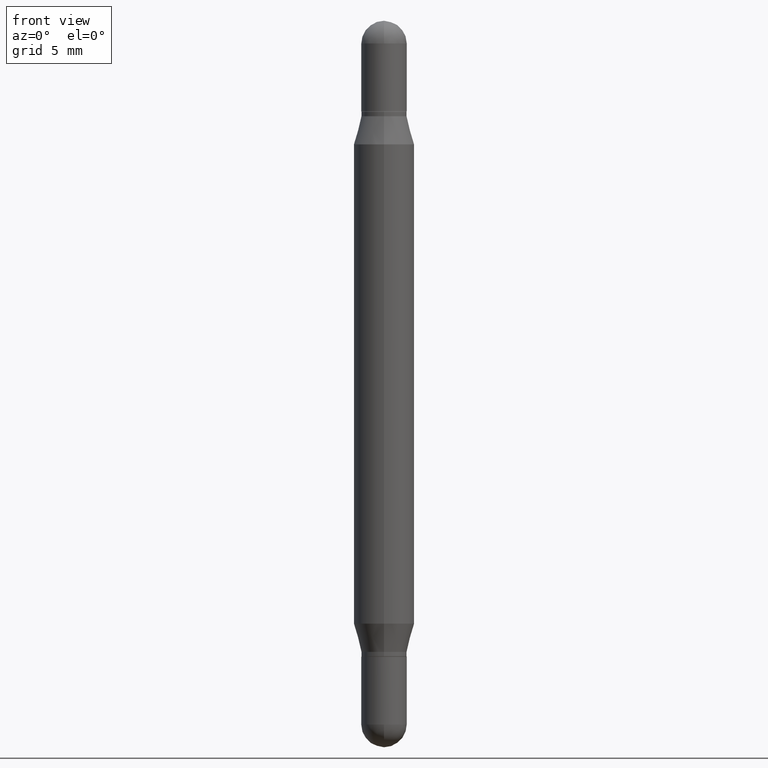
[diagram: clean part render]
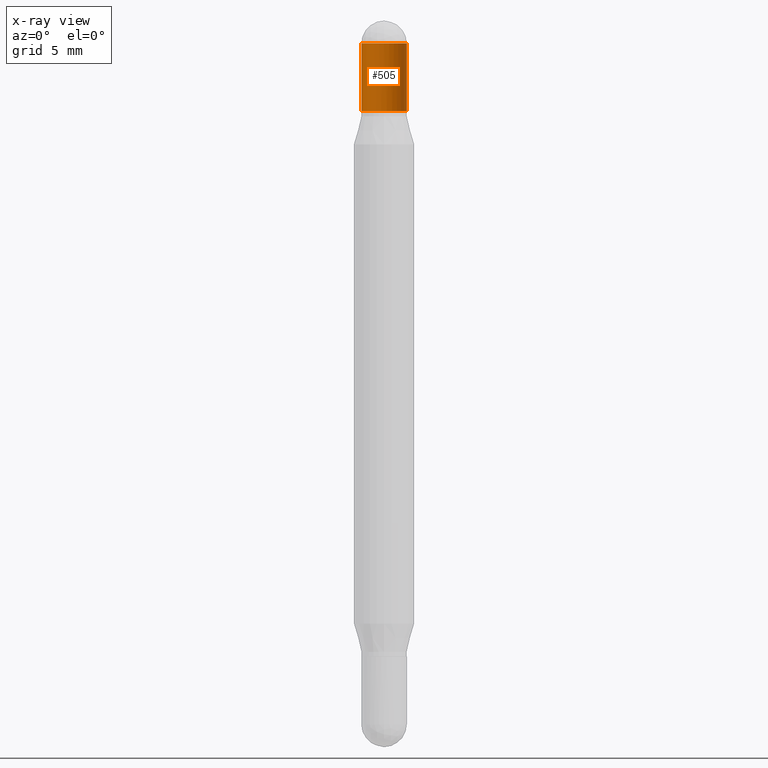
[diagram: x-ray — body ghosted, one internal face saturated and labeled with its STEP entity id]
A machine part, front view, then the same camera in x-ray: the body is ghosted and one INTERNAL B-rep face — a face not visible from any outside direction — is saturated and labeled: STEP entity #505.
In plain terms, the highlighted cylindrical surface (edge-blend (fillet) strip) has radius 1.1913 mm, axis along (-0, -0, -1).
Its self-contained STEP definition (entity closure, byte-faithful):
#1 = VERTEX_POINT ( 'NONE', #438 ) ;
#21 = DIRECTION ( 'NONE',  ( 1.000000000000000000, -6.982962677686266711E-15, 0.000000000000000000 ) ) ;
#36 = CARTESIAN_POINT ( 'NONE',  ( -0.04689999999999999725, -4.906564498270247118E-15, -1.500000000000000444 ) ) ;
#93 = CARTESIAN_POINT ( 'NONE',  ( 3.217573560955207797E-16, 0.04689999999999990010, -0.04690000000000069114 ) ) ;
#98 = FACE_OUTER_BOUND ( 'NONE', #277, .T. ) ;
#105 = CARTESIAN_POINT ( 'NONE',  ( 3.553510722267622201E-29, -1.720940724002502970E-16, -0.04690000000000053154 ) ) ;
#114 = CARTESIAN_POINT ( 'NONE',  ( -0.04689999999999999725, -9.408370971656158891E-17, -0.1870000000000002216 ) ) ;
#134 = EDGE_CURVE ( 'NONE', #595, #494, #817, .T. ) ;
#145 = CARTESIAN_POINT ( 'NONE',  ( -0.04689999999999999725, -9.408370971656128076E-17, -0.04690000000000053154 ) ) ;
#192 = CARTESIAN_POINT ( 'NONE',  ( 0.04689999999999999725, -5.555822803949218252E-15, -1.500000000000000444 ) ) ;
#269 = DIRECTION ( 'NONE',  ( 1.000000000000000000, -6.982962677686266711E-15, 0.000000000000000000 ) ) ;
#277 = EDGE_LOOP ( 'NONE', ( #1044, #347, #846, #327, #889 ) ) ;
#317 = AXIS2_PLACEMENT_3D ( 'NONE', #445, #528, #21 ) ;
#327 = ORIENTED_EDGE ( 'NONE', *, *, #546, .T. ) ;
#340 = CIRCLE ( 'NONE', #550, 0.04689999999999999725 ) ;
#347 = ORIENTED_EDGE ( 'NONE', *, *, #506, .F. ) ;
#375 = DIRECTION ( 'NONE',  ( 1.000000000000000000, -6.982962677686266711E-15, 0.000000000000000000 ) ) ;
#438 = CARTESIAN_POINT ( 'NONE',  ( 0.04689999999999999725, -9.870890088073285070E-16, -0.1870000000000002216 ) ) ;
#445 = CARTESIAN_POINT ( 'NONE',  ( 3.553510722267622201E-29, -1.720940724002502970E-16, -0.04690000000000053154 ) ) ;
#453 = DIRECTION ( 'NONE',  ( 1.000000000000000000, -6.982962677686277755E-15, 0.000000000000000000 ) ) ;
#463 = VERTEX_POINT ( 'NONE', #93 ) ;
#494 = VERTEX_POINT ( 'NONE', #114 ) ;
#503 = VERTEX_POINT ( 'NONE', #964 ) ;
#505 = ADVANCED_FACE ( 'NONE', ( #98 ), #536, .T. ) ;
#506 = EDGE_CURVE ( 'NONE', #463, #595, #881, .T. ) ;
#516 = AXIS2_PLACEMENT_3D ( 'NONE', #105, #801, #269 ) ;
#528 = DIRECTION ( 'NONE',  ( 2.445468806185136597E-29, 3.479614466977828254E-15, 1.000000000000000000 ) ) ;
#536 = CYLINDRICAL_SURFACE ( 'NONE', #1005, 0.04689999999999999725 ) ;
#538 = EDGE_CURVE ( 'NONE', #503, #463, #1114, .T. ) ;
#543 = LINE ( 'NONE', #192, #1036 ) ;
#546 = EDGE_CURVE ( 'NONE', #503, #1, #543, .T. ) ;
#550 = AXIS2_PLACEMENT_3D ( 'NONE', #932, #1058, #375 ) ;
#595 = VERTEX_POINT ( 'NONE', #145 ) ;
#604 = EDGE_CURVE ( 'NONE', #1, #494, #340, .T. ) ;
#712 = CARTESIAN_POINT ( 'NONE',  ( 0.000000000000000000, -5.228321854365732350E-15, -1.500000000000000444 ) ) ;
#801 = DIRECTION ( 'NONE',  ( 2.445468806185136597E-29, 3.479614466977828254E-15, 1.000000000000000000 ) ) ;
#811 = DIRECTION ( 'NONE',  ( -2.445468806185136877E-29, -3.479614466977828648E-15, -1.000000000000000000 ) ) ;
#817 = LINE ( 'NONE', #36, #1033 ) ;
#846 = ORIENTED_EDGE ( 'NONE', *, *, #538, .F. ) ;
#881 = CIRCLE ( 'NONE', #516, 0.04689999999999999725 ) ;
#889 = ORIENTED_EDGE ( 'NONE', *, *, #604, .T. ) ;
#894 = DIRECTION ( 'NONE',  ( -2.445468806185136877E-29, -3.479614466977828648E-15, -1.000000000000000000 ) ) ;
#932 = CARTESIAN_POINT ( 'NONE',  ( 3.210900542521084585E-29, -6.595880592238425060E-16, -0.1870000000000002216 ) ) ;
#964 = CARTESIAN_POINT ( 'NONE',  ( 0.04689999999999999725, -7.433420153955320943E-16, -0.04690000000000053154 ) ) ;
#973 = DIRECTION ( 'NONE',  ( -2.445468806185136597E-29, -3.479614466977828254E-15, -1.000000000000000000 ) ) ;
#1005 = AXIS2_PLACEMENT_3D ( 'NONE', #712, #973, #453 ) ;
#1033 = VECTOR ( 'NONE', #811, 39.37007874015748143 ) ;
#1036 = VECTOR ( 'NONE', #894, 39.37007874015748143 ) ;
#1044 = ORIENTED_EDGE ( 'NONE', *, *, #134, .F. ) ;
#1058 = DIRECTION ( 'NONE',  ( 2.445468806185136597E-29, 3.479614466977828254E-15, 1.000000000000000000 ) ) ;
#1114 = CIRCLE ( 'NONE', #317, 0.04689999999999999725 ) ;